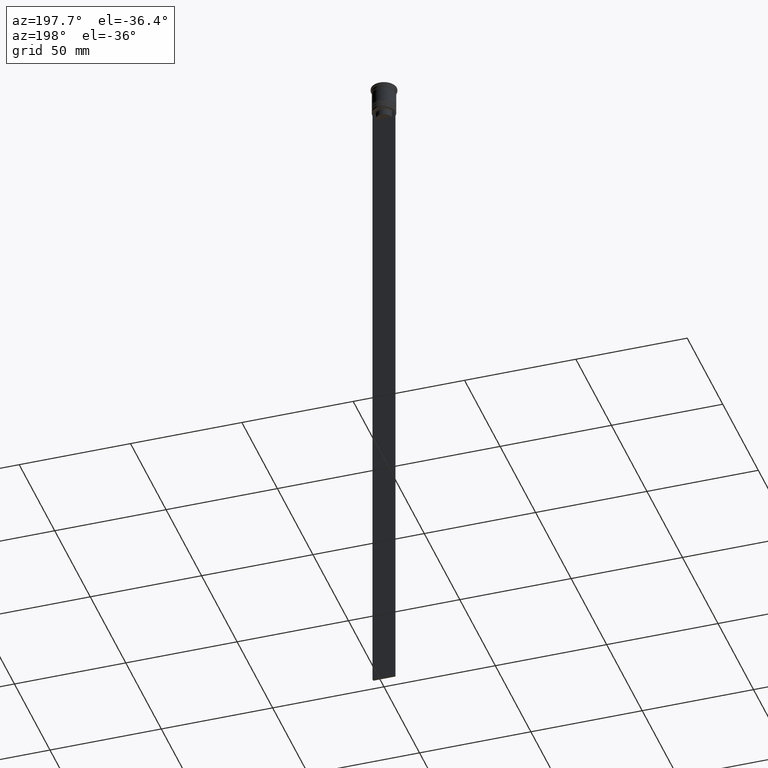
[diagram: clean part render]
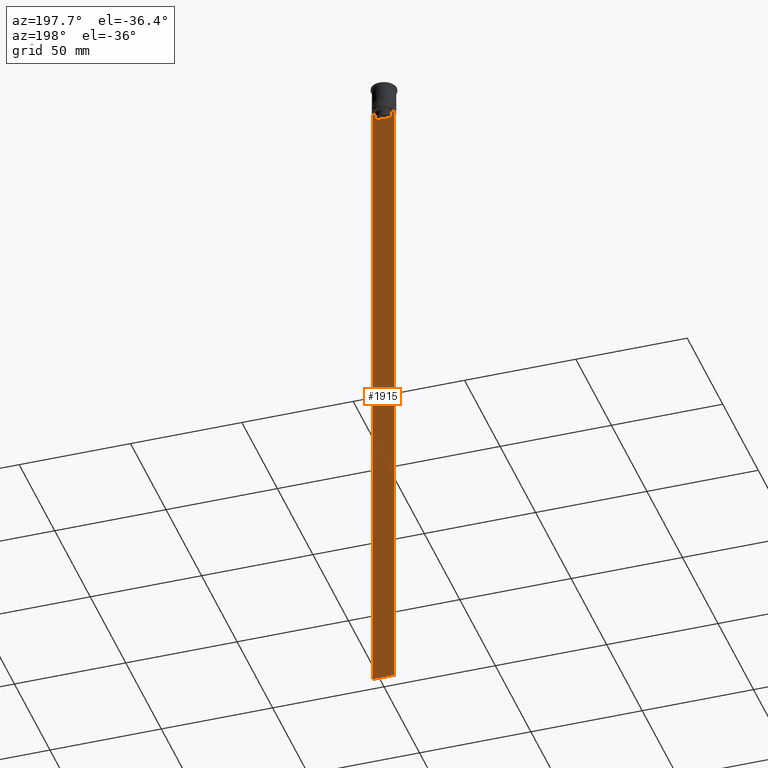
[diagram: same view with one face highlighted and labeled with its STEP entity id]
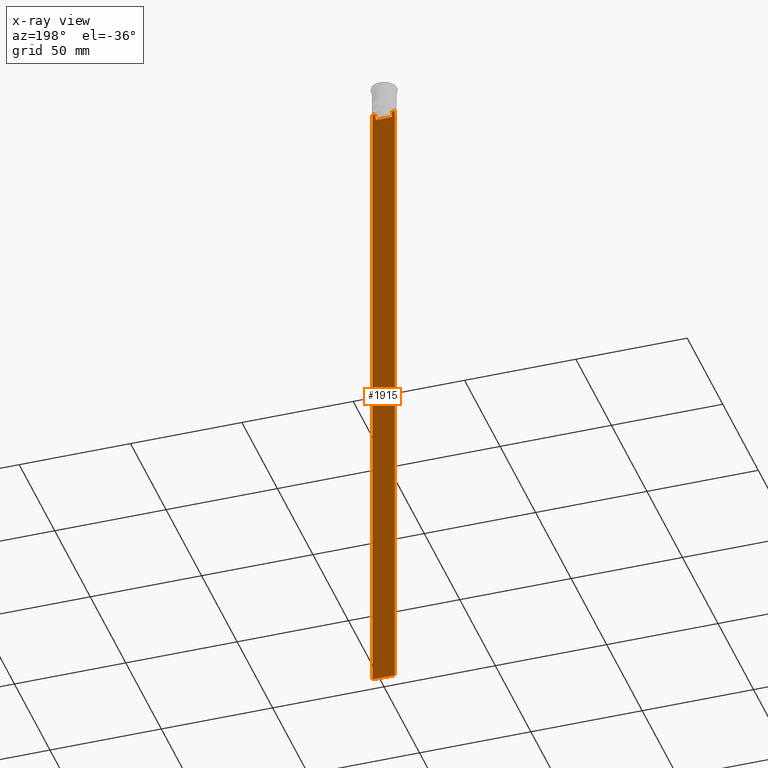
[diagram: x-ray of the same camera — body ghosted, the highlighted face saturated]
A machine part, auxiliary view. The second image highlights one B-rep face of the part: STEP entity #1915.
The next image is the same camera in x-ray: the body ghosted, the highlighted face saturated — about 0% of this face is hidden behind the body in this view.
In plain terms, the highlighted planar face has unit normal (0, -1, -0).
Its self-contained STEP definition (entity closure, byte-faithful):
#4 = VECTOR ( 'NONE', #864, 1000.000000000000000 ) ;
#11 = EDGE_CURVE ( 'NONE', #1811, #238, #1819, .T. ) ;
#21 = CARTESIAN_POINT ( 'NONE',  ( 4.119769411022908834, 0.4999999999999991673, -12.50000000000000000 ) ) ;
#34 = EDGE_CURVE ( 'NONE', #2282, #783, #1244, .T. ) ;
#81 = VECTOR ( 'NONE', #301, 1000.000000000000000 ) ;
#133 = ORIENTED_EDGE ( 'NONE', *, *, #11, .F. ) ;
#135 = CARTESIAN_POINT ( 'NONE',  ( -4.119769411022908834, 0.4999999999999991673, -12.50000000000000000 ) ) ;
#143 = VERTEX_POINT ( 'NONE', #1205 ) ;
#149 = CARTESIAN_POINT ( 'NONE',  ( -4.999999999999999112, 0.4999999999999993339, -12.50000000000000000 ) ) ;
#156 = VECTOR ( 'NONE', #934, 1000.000000000000000 ) ;
#192 = PLANE ( 'NONE',  #1514 ) ;
#212 = CARTESIAN_POINT ( 'NONE',  ( -4.999999999999999112, 0.4999999999999991673, -2.450124378879110054 ) ) ;
#238 = VERTEX_POINT ( 'NONE', #892 ) ;
#261 = DIRECTION ( 'NONE',  ( 1.000000000000000000, 0.000000000000000000, 0.000000000000000000 ) ) ;
#266 = CARTESIAN_POINT ( 'NONE',  ( -3.783746449387932920, 0.4999999999999991673, -12.83342999751715752 ) ) ;
#268 = EDGE_CURVE ( 'NONE', #1490, #1137, #1068, .T. ) ;
#301 = DIRECTION ( 'NONE',  ( 0.000000000000000000, 0.000000000000000000, -1.000000000000000000 ) ) ;
#364 = CARTESIAN_POINT ( 'NONE',  ( 5.000000000000000000, 0.4999999999999991673, -2.450124378879110054 ) ) ;
#400 = VERTEX_POINT ( 'NONE', #2032 ) ;
#447 = ORIENTED_EDGE ( 'NONE', *, *, #2076, .T. ) ;
#469 = EDGE_CURVE ( 'NONE', #783, #1340, #1200, .T. ) ;
#529 = LINE ( 'NONE', #1082, #1984 ) ;
#532 = CARTESIAN_POINT ( 'NONE',  ( 5.000000000000000000, 0.4999999999999991673, -12.50000000000000000 ) ) ;
#539 = EDGE_LOOP ( 'NONE', ( #695, #1206, #2301, #447, #1392, #1463, #1577, #2294, #641, #133 ) ) ;
#551 = DIRECTION ( 'NONE',  ( 0.000000000000000000, -1.000000000000000000, -0.000000000000000000 ) ) ;
#586 = CARTESIAN_POINT ( 'NONE',  ( 3.783746406711540722, 0.4999999999999991673, -12.83343003979123509 ) ) ;
#602 = EDGE_CURVE ( 'NONE', #143, #238, #1618, .T. ) ;
#605 = LINE ( 'NONE', #1314, #1820 ) ;
#641 = ORIENTED_EDGE ( 'NONE', *, *, #602, .T. ) ;
#695 = ORIENTED_EDGE ( 'NONE', *, *, #1440, .T. ) ;
#741 = CARTESIAN_POINT ( 'NONE',  ( 3.615591237958188486, 0.4999999999999991673, -15.50000000000000000 ) ) ;
#783 = VERTEX_POINT ( 'NONE', #1653 ) ;
#799 = EDGE_CURVE ( 'NONE', #1612, #400, #1479, .T. ) ;
#864 = DIRECTION ( 'NONE',  ( 1.000000000000000000, 0.000000000000000000, 0.000000000000000000 ) ) ;
#892 = CARTESIAN_POINT ( 'NONE',  ( -4.999999999999999112, 0.4999999999999991673, -312.5000000000000000 ) ) ;
#899 = FACE_OUTER_BOUND ( 'NONE', #539, .T. ) ;
#931 = CARTESIAN_POINT ( 'NONE',  ( 5.000000000000000000, 0.4999999999999991673, -12.50000000000000000 ) ) ;
#934 = DIRECTION ( 'NONE',  ( 0.000000000000000000, 0.000000000000000000, -1.000000000000000000 ) ) ;
#965 = CARTESIAN_POINT ( 'NONE',  ( 3.615591237958188042, 0.4999999999999991673, 0.000000000000000000 ) ) ;
#1012 = CARTESIAN_POINT ( 'NONE',  ( -3.615591237958188042, 0.4999999999999991673, 0.000000000000000000 ) ) ;
#1016 = CARTESIAN_POINT ( 'NONE',  ( -3.615591237958188042, 0.4999999999999991673, -13.00000000000000178 ) ) ;
#1068 = LINE ( 'NONE', #931, #4 ) ;
#1072 = VECTOR ( 'NONE', #1972, 1000.000000000000000 ) ;
#1082 = CARTESIAN_POINT ( 'NONE',  ( 5.000000000000000000, 0.4999999999999991673, -12.50000000000000000 ) ) ;
#1137 = VERTEX_POINT ( 'NONE', #532 ) ;
#1160 = CARTESIAN_POINT ( 'NONE',  ( -4.119769411022908834, 0.4999999999999991673, -12.50000000000000000 ) ) ;
#1164 = CARTESIAN_POINT ( 'NONE',  ( 5.000000000000000000, 0.4999999999999991673, -2.450124378879110054 ) ) ;
#1188 = LINE ( 'NONE', #1164, #2285 ) ;
#1200 = LINE ( 'NONE', #1012, #81 ) ;
#1205 = CARTESIAN_POINT ( 'NONE',  ( 5.000000000000000000, 0.4999999999999991673, -312.5000000000000000 ) ) ;
#1206 = ORIENTED_EDGE ( 'NONE', *, *, #34, .T. ) ;
#1244 = B_SPLINE_CURVE_WITH_KNOTS ( 'NONE', 3,
 ( #1160, #2286, #266, #1016 ),
 .UNSPECIFIED., .F., .F.,
 ( 4, 4 ),
 ( 0.007067514914986626831, 0.007777582239375527978 ),
 .UNSPECIFIED. ) ;
#1304 = CARTESIAN_POINT ( 'NONE',  ( 3.951794168112527927, 0.4999999999999991673, -12.66675163073525923 ) ) ;
#1314 = CARTESIAN_POINT ( 'NONE',  ( 0.000000000000000000, 0.4999999999999991673, -15.50000000000000000 ) ) ;
#1340 = VERTEX_POINT ( 'NONE', #2295 ) ;
#1392 = ORIENTED_EDGE ( 'NONE', *, *, #799, .T. ) ;
#1440 = EDGE_CURVE ( 'NONE', #1811, #2282, #529, .T. ) ;
#1463 = ORIENTED_EDGE ( 'NONE', *, *, #1967, .T. ) ;
#1479 = LINE ( 'NONE', #965, #2053 ) ;
#1490 = VERTEX_POINT ( 'NONE', #21 ) ;
#1514 = AXIS2_PLACEMENT_3D ( 'NONE', #364, #551, #1805 ) ;
#1577 = ORIENTED_EDGE ( 'NONE', *, *, #268, .T. ) ;
#1612 = VERTEX_POINT ( 'NONE', #741 ) ;
#1618 = LINE ( 'NONE', #2344, #1072 ) ;
#1653 = CARTESIAN_POINT ( 'NONE',  ( -3.615591237958188042, 0.4999999999999991673, -13.00000000000000178 ) ) ;
#1797 = DIRECTION ( 'NONE',  ( 1.000000000000000000, 0.000000000000000000, 0.000000000000000000 ) ) ;
#1799 = B_SPLINE_CURVE_WITH_KNOTS ( 'NONE', 3,
 ( #2210, #586, #1304, #2030 ),
 .UNSPECIFIED., .F., .F.,
 ( 4, 4 ),
 ( 0.01745179617248911533, 0.01816207215777259493 ),
 .UNSPECIFIED. ) ;
#1805 = DIRECTION ( 'NONE',  ( 0.000000000000000000, 0.000000000000000000, -1.000000000000000000 ) ) ;
#1811 = VERTEX_POINT ( 'NONE', #149 ) ;
#1819 = LINE ( 'NONE', #212, #156 ) ;
#1820 = VECTOR ( 'NONE', #261, 1000.000000000000000 ) ;
#1868 = DIRECTION ( 'NONE',  ( 0.000000000000000000, 0.000000000000000000, -1.000000000000000000 ) ) ;
#1915 = ADVANCED_FACE ( 'NONE', ( #899 ), #192, .F. ) ;
#1967 = EDGE_CURVE ( 'NONE', #400, #1490, #1799, .T. ) ;
#1972 = DIRECTION ( 'NONE',  ( -1.000000000000000000, 0.000000000000000000, 0.000000000000000000 ) ) ;
#1984 = VECTOR ( 'NONE', #1797, 1000.000000000000000 ) ;
#2030 = CARTESIAN_POINT ( 'NONE',  ( 4.119769411022908834, 0.4999999999999991673, -12.50000000000000000 ) ) ;
#2032 = CARTESIAN_POINT ( 'NONE',  ( 3.615591237958188042, 0.4999999999999991673, -13.00000000000000178 ) ) ;
#2053 = VECTOR ( 'NONE', #2208, 1000.000000000000000 ) ;
#2054 = EDGE_CURVE ( 'NONE', #1137, #143, #1188, .T. ) ;
#2076 = EDGE_CURVE ( 'NONE', #1340, #1612, #605, .T. ) ;
#2208 = DIRECTION ( 'NONE',  ( -0.000000000000000000, -0.000000000000000000, 1.000000000000000000 ) ) ;
#2210 = CARTESIAN_POINT ( 'NONE',  ( 3.615591237958188042, 0.4999999999999991673, -13.00000000000000178 ) ) ;
#2282 = VERTEX_POINT ( 'NONE', #135 ) ;
#2285 = VECTOR ( 'NONE', #1868, 1000.000000000000000 ) ;
#2286 = CARTESIAN_POINT ( 'NONE',  ( -3.951794205566887985, 0.4999999999999991673, -12.66675159355373737 ) ) ;
#2294 = ORIENTED_EDGE ( 'NONE', *, *, #2054, .T. ) ;
#2295 = CARTESIAN_POINT ( 'NONE',  ( -3.615591237958188486, 0.4999999999999991673, -15.50000000000000000 ) ) ;
#2301 = ORIENTED_EDGE ( 'NONE', *, *, #469, .T. ) ;
#2344 = CARTESIAN_POINT ( 'NONE',  ( 5.000000000000000000, 0.4999999999999991673, -312.5000000000000000 ) ) ;